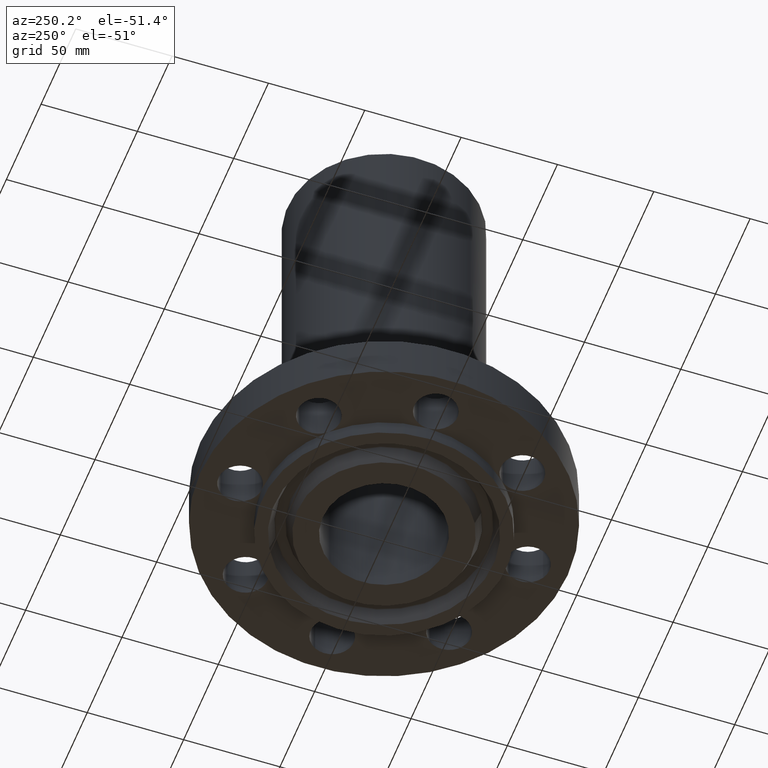
[diagram: clean part render]
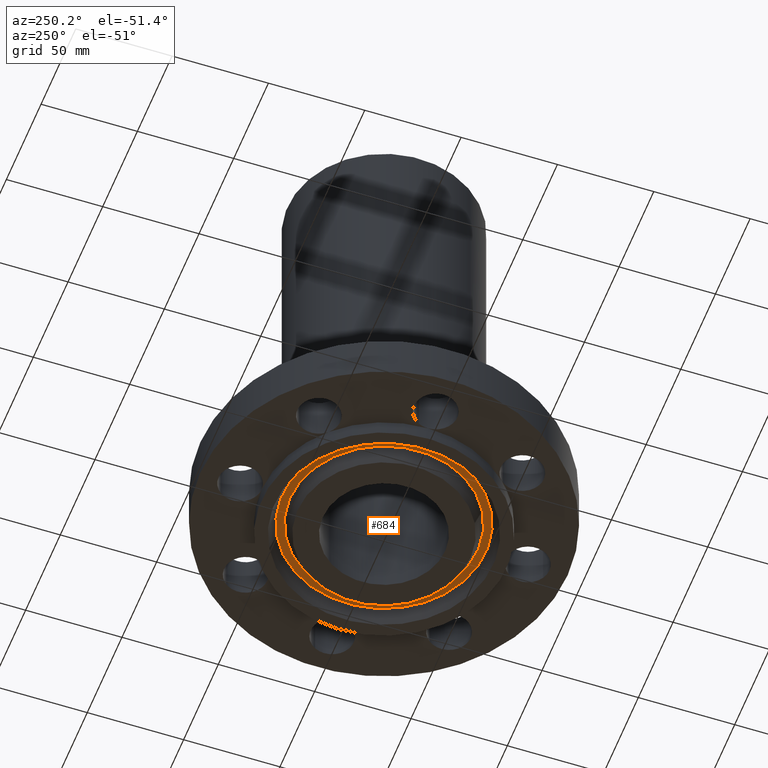
[diagram: same view with one face highlighted and labeled with its STEP entity id]
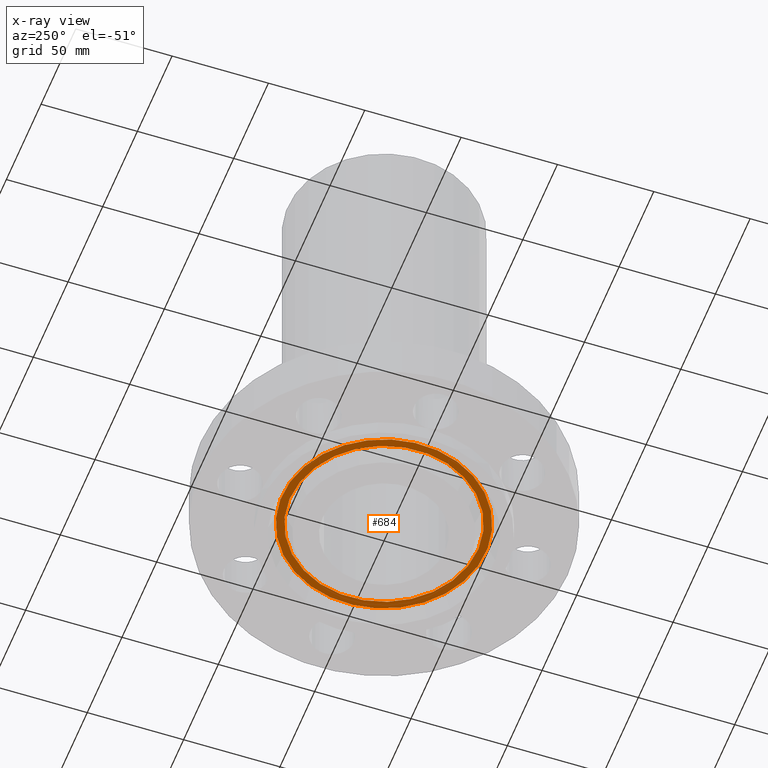
[diagram: x-ray of the same camera — body ghosted, the highlighted face saturated]
A machine part, auxiliary view. The second image highlights one B-rep face of the part: STEP entity #684.
The next image is the same camera in x-ray: the body ghosted, the highlighted face saturated — about 0% of this face is hidden behind the body in this view.
In plain terms, the highlighted planar face has unit normal (0, 0, -1).
Its self-contained STEP definition (entity closure, byte-faithful):
#78=AXIS2_PLACEMENT_3D('Plane Axis2P3D',#75,#76,#77) ;
#633=AXIS2_PLACEMENT_3D('Circle Axis2P3D',#631,#632,$) ;
#652=AXIS2_PLACEMENT_3D('Circle Axis2P3D',#650,#651,$) ;
#664=AXIS2_PLACEMENT_3D('Circle Axis2P3D',#662,#663,$) ;
#673=AXIS2_PLACEMENT_3D('Circle Axis2P3D',#671,#672,$) ;
#75=CARTESIAN_POINT('Axis2P3D Location',(0.,1.91887906988,0.)) ;
#628=CARTESIAN_POINT('Vertex',(-0.919959631593,-1.6839748101,9.17900925871E-017)) ;
#631=CARTESIAN_POINT('Axis2P3D Location',(0.,0.,9.17900925871E-017)) ;
#635=CARTESIAN_POINT('Vertex',(0.919959631593,1.6839748101,9.17900925871E-017)) ;
#650=CARTESIAN_POINT('Axis2P3D Location',(0.,0.,9.17900925871E-017)) ;
#662=CARTESIAN_POINT('Axis2P3D Location',(0.,0.,0.)) ;
#666=CARTESIAN_POINT('Vertex',(-0.997742522832,-1.82635543747,1.74838271595E-017)) ;
#668=CARTESIAN_POINT('Vertex',(0.997742522832,1.82635543747,1.74838271595E-017)) ;
#671=CARTESIAN_POINT('Axis2P3D Location',(0.,0.,0.)) ;
#76=DIRECTION('Axis2P3D Direction',(0.,0.,-0.0393700787402)) ;
#77=DIRECTION('Axis2P3D XDirection',(0.0393700787402,0.,0.)) ;
#632=DIRECTION('Axis2P3D Direction',(0.,0.,-0.0393700787402)) ;
#651=DIRECTION('Axis2P3D Direction',(0.,0.,-0.0393700787402)) ;
#663=DIRECTION('Axis2P3D Direction',(0.,0.,-0.0393700787402)) ;
#672=DIRECTION('Axis2P3D Direction',(0.,0.,-0.0393700787402)) ;
#677=ORIENTED_EDGE('',*,*,#670,.T.) ;
#678=ORIENTED_EDGE('',*,*,#675,.T.) ;
#681=ORIENTED_EDGE('',*,*,#654,.F.) ;
#682=ORIENTED_EDGE('',*,*,#637,.F.) ;
#683=FACE_BOUND('',#680,.T.) ;
#684=ADVANCED_FACE('PartBody',(#679,#683),#79,.T.) ;
#634=CIRCLE('generated circle',#633,1.91887906988) ;
#653=CIRCLE('generated circle',#652,1.91887906988) ;
#665=CIRCLE('generated circle',#664,2.08112093014) ;
#674=CIRCLE('generated circle',#673,2.08112093014) ;
#637=EDGE_CURVE('',#629,#636,#634,.T.) ;
#654=EDGE_CURVE('',#636,#629,#653,.T.) ;
#670=EDGE_CURVE('',#667,#669,#665,.T.) ;
#675=EDGE_CURVE('',#669,#667,#674,.T.) ;
#676=EDGE_LOOP('',(#677,#678)) ;
#680=EDGE_LOOP('',(#681,#682)) ;
#679=FACE_OUTER_BOUND('',#676,.T.) ;
#79=PLANE('',#78) ;
#629=VERTEX_POINT('',#628) ;
#636=VERTEX_POINT('',#635) ;
#667=VERTEX_POINT('',#666) ;
#669=VERTEX_POINT('',#668) ;